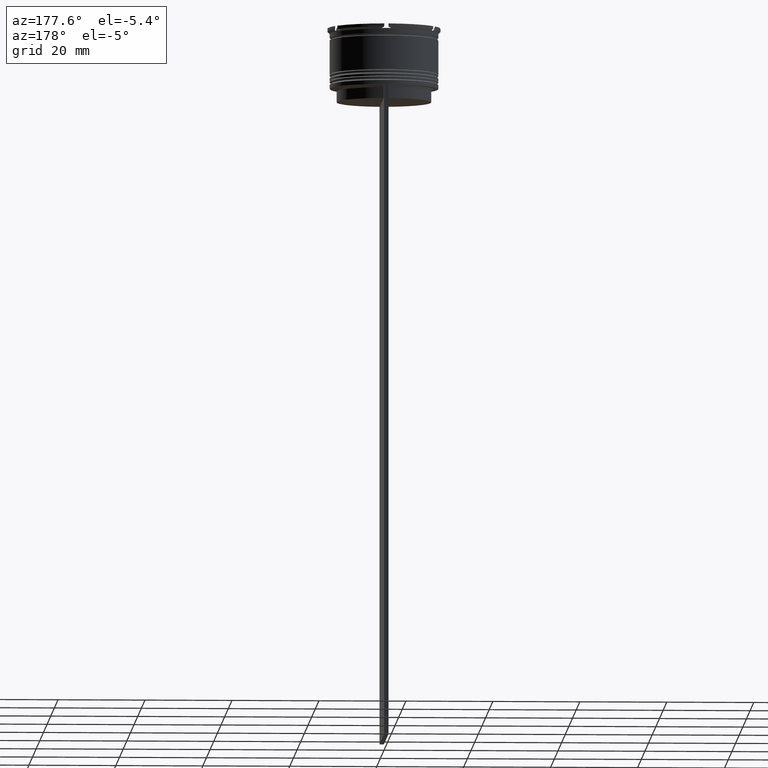
[diagram: clean part render]
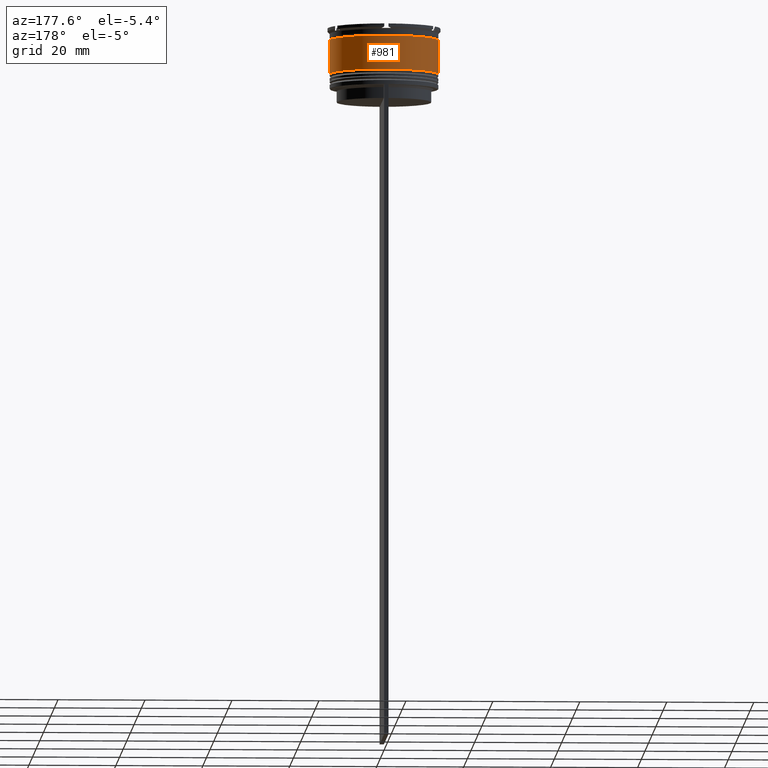
[diagram: same view with one face highlighted and labeled with its STEP entity id]
A machine part, auxiliary view. The second image highlights one B-rep face of the part: STEP entity #981.
In plain terms, the highlighted cylindrical surface (partial cylindrical patch) has radius 12.5 mm, axis along (-0, -0, 1).
Its self-contained STEP definition (entity closure, byte-faithful):
#14 = EDGE_CURVE ( 'NONE', #2252, #2370, #1924, .T. ) ;
#156 = EDGE_CURVE ( 'NONE', #275, #2252, #1097, .T. ) ;
#275 = VERTEX_POINT ( 'NONE', #2054 ) ;
#347 = ORIENTED_EDGE ( 'NONE', *, *, #2256, .F. ) ;
#430 = DIRECTION ( 'NONE',  ( -0.000000000000000000, -0.000000000000000000, 1.000000000000000000 ) ) ;
#473 = DIRECTION ( 'NONE',  ( -0.000000000000000000, -0.000000000000000000, 1.000000000000000000 ) ) ;
#523 = CARTESIAN_POINT ( 'NONE',  ( -12.49999999999999822, 1.530808498934191324E-15, -2.699999999999999289 ) ) ;
#607 = CARTESIAN_POINT ( 'NONE',  ( 12.49999999999999822, 0.000000000000000000, -2.699999999999999289 ) ) ;
#643 = CARTESIAN_POINT ( 'NONE',  ( 0.000000000000000000, 0.000000000000000000, 0.000000000000000000 ) ) ;
#674 = CARTESIAN_POINT ( 'NONE',  ( -12.50000000000000355, 1.530808498934191916E-15, -10.50000000000000178 ) ) ;
#725 = VECTOR ( 'NONE', #1699, 1000.000000000000000 ) ;
#757 = DIRECTION ( 'NONE',  ( 1.000000000000000000, 0.000000000000000000, 0.000000000000000000 ) ) ;
#810 = VERTEX_POINT ( 'NONE', #607 ) ;
#938 = LINE ( 'NONE', #971, #1345 ) ;
#971 = CARTESIAN_POINT ( 'NONE',  ( 12.50000000000000000, 0.000000000000000000, 0.000000000000000000 ) ) ;
#981 = ADVANCED_FACE ( 'NONE', ( #1987 ), #2861, .T. ) ;
#1075 = DIRECTION ( 'NONE',  ( -0.000000000000000000, -0.000000000000000000, 1.000000000000000000 ) ) ;
#1097 = CIRCLE ( 'NONE', #2145, 12.50000000000000178 ) ;
#1101 = AXIS2_PLACEMENT_3D ( 'NONE', #643, #1075, #2852 ) ;
#1124 = ORIENTED_EDGE ( 'NONE', *, *, #1908, .F. ) ;
#1170 = ORIENTED_EDGE ( 'NONE', *, *, #156, .T. ) ;
#1188 = EDGE_LOOP ( 'NONE', ( #1170, #2819, #1124, #347 ) ) ;
#1306 = DIRECTION ( 'NONE',  ( 1.000000000000000000, 0.000000000000000000, 0.000000000000000000 ) ) ;
#1345 = VECTOR ( 'NONE', #473, 1000.000000000000000 ) ;
#1483 = CIRCLE ( 'NONE', #2751, 12.49999999999999822 ) ;
#1699 = DIRECTION ( 'NONE',  ( -0.000000000000000000, -0.000000000000000000, 1.000000000000000000 ) ) ;
#1908 = EDGE_CURVE ( 'NONE', #810, #2370, #1483, .T. ) ;
#1924 = LINE ( 'NONE', #2803, #725 ) ;
#1987 = FACE_OUTER_BOUND ( 'NONE', #1188, .T. ) ;
#2054 = CARTESIAN_POINT ( 'NONE',  ( 12.50000000000000178, 0.000000000000000000, -10.50000000000000178 ) ) ;
#2103 = CARTESIAN_POINT ( 'NONE',  ( 0.000000000000000000, 0.000000000000000000, -2.699999999999999289 ) ) ;
#2145 = AXIS2_PLACEMENT_3D ( 'NONE', #2208, #430, #1306 ) ;
#2208 = CARTESIAN_POINT ( 'NONE',  ( 0.000000000000000000, 0.000000000000000000, -10.50000000000000178 ) ) ;
#2252 = VERTEX_POINT ( 'NONE', #674 ) ;
#2256 = EDGE_CURVE ( 'NONE', #275, #810, #938, .T. ) ;
#2370 = VERTEX_POINT ( 'NONE', #523 ) ;
#2751 = AXIS2_PLACEMENT_3D ( 'NONE', #2103, #2765, #757 ) ;
#2765 = DIRECTION ( 'NONE',  ( -0.000000000000000000, -0.000000000000000000, 1.000000000000000000 ) ) ;
#2803 = CARTESIAN_POINT ( 'NONE',  ( -12.50000000000000000, 1.530808498934191521E-15, 0.000000000000000000 ) ) ;
#2819 = ORIENTED_EDGE ( 'NONE', *, *, #14, .T. ) ;
#2852 = DIRECTION ( 'NONE',  ( 1.000000000000000000, 0.000000000000000000, 0.000000000000000000 ) ) ;
#2861 = CYLINDRICAL_SURFACE ( 'NONE', #1101, 12.50000000000000000 ) ;